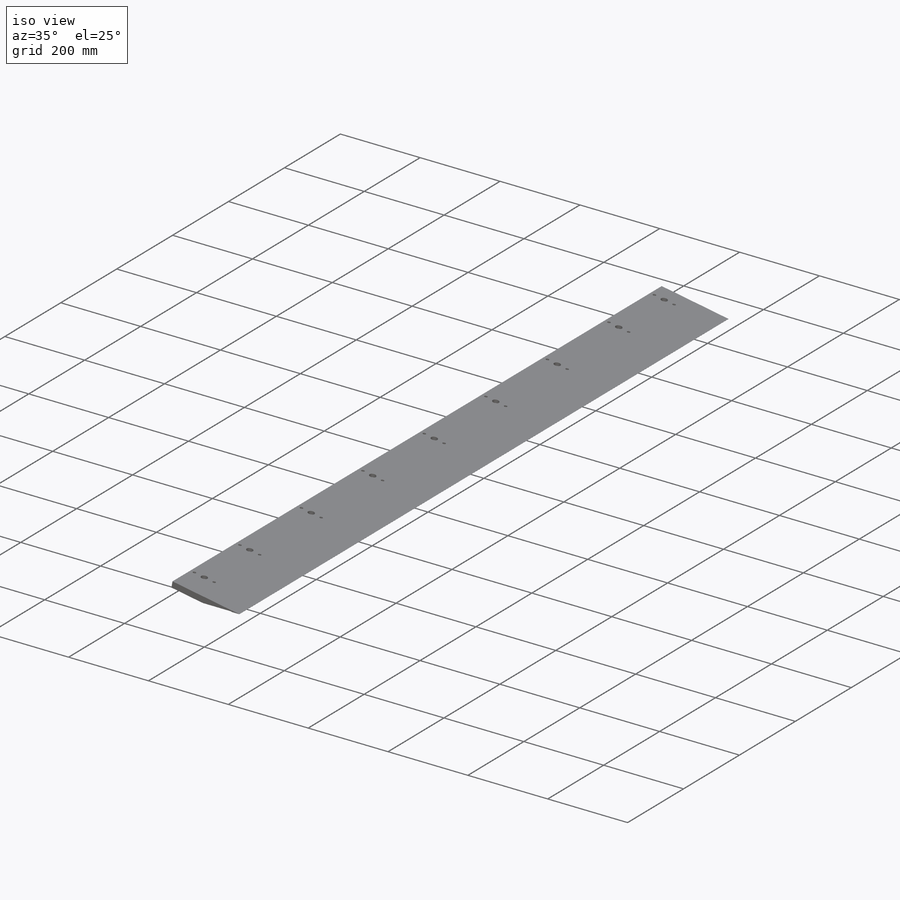
[diagram: iso view]
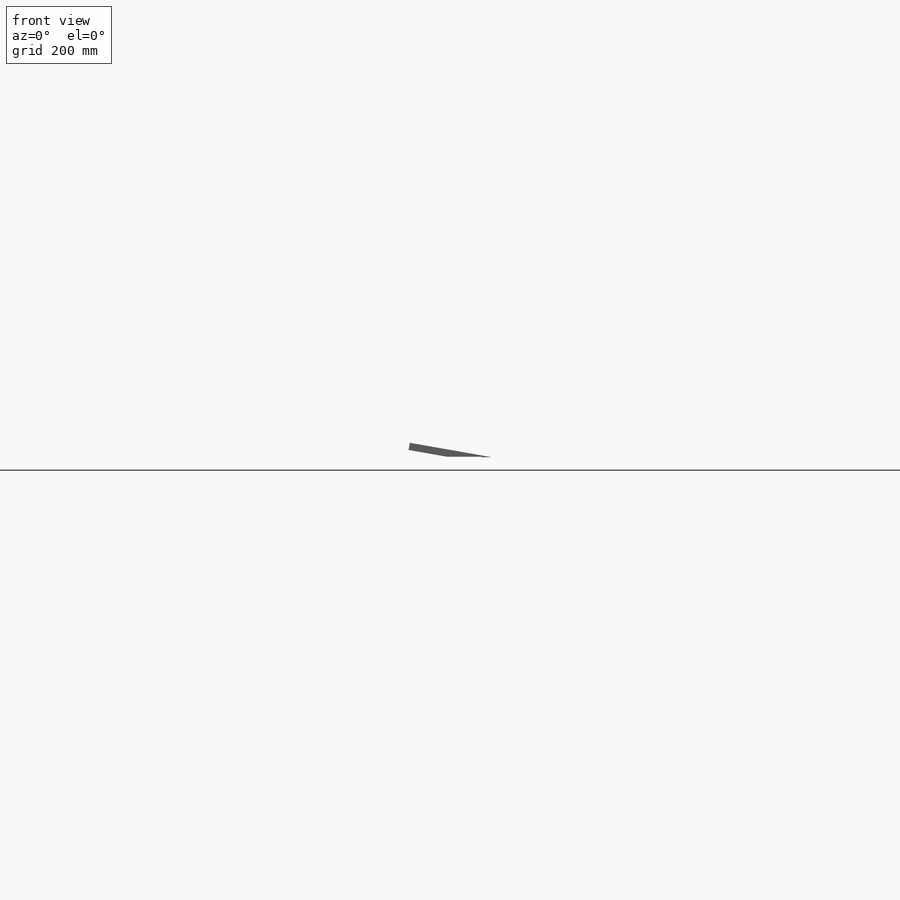
[diagram: front view]
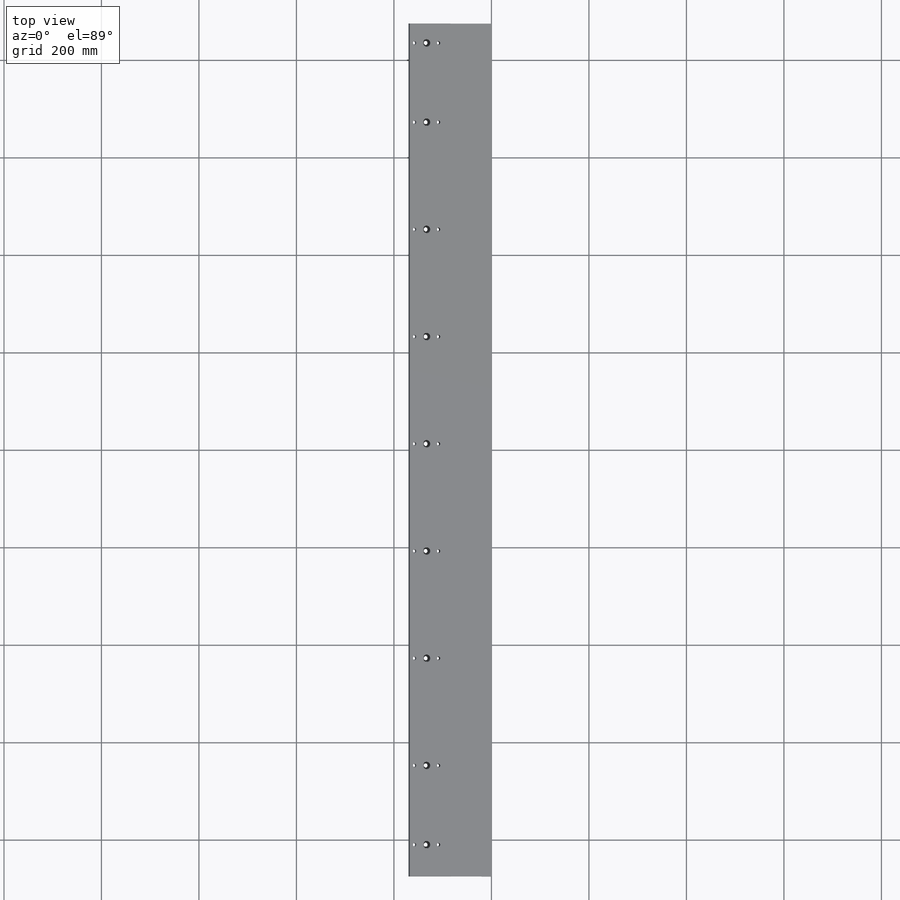
[diagram: top view]
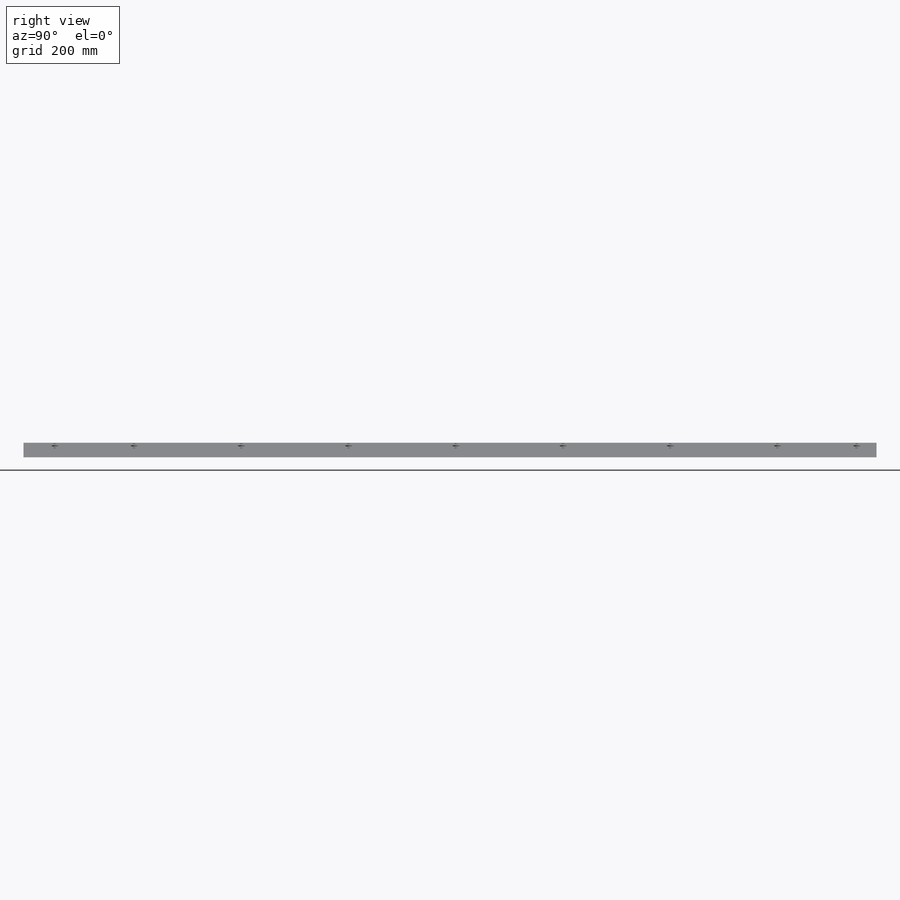
[diagram: right view]
SOLIDWORKS PART (.sldprt)
format: sldprt  version: not decoded by parser v0  size: 451,072 bytes
history: native  units: mm
features: thread x18, sketch x6, plane x3, hole x2, material x1, extrude x1, chamfer x1, fillet x1 (+10 scaffold rows collapsed)
feature tree (43):
  scaffold x10  (default folders/planes/origin — collapsed)
  material  "Matériau <non spécifié>"
  plane  "Plan de face"
  plane  "Plan de dessus"
  plane  "Plan de droite"
  sketch  "Esquisse1"  dims[c1.D1=20.0mm c1.D2=0.5mm c1.D3=1.0mm c1.D4=15.0mm c1.D5=80.0mm c1.D6=60.0mm c1.D7=~158.767062mm c2.D6=170.0mm c2.D7=20.0mm c3.D7=~11.661079deg c4.D7=~61.58278mm c5.D7=~11.661079deg c6.D7=~61.392567mm c7.D7=~10.971623deg c8.D7=~61.392567mm c9.D7=~169.028377deg c10.D7=~61.392567mm c10.D2=~15.225823mm c11.D2=170.0deg c11.D3=1.0mm]
  extrude  "Boss.-Extru.1"  Depth=1750mm
  sketch  "Esquisse3"  dims[c1.D1=5.0mm c1.D2=5.0mm c1.D7=16.0mm c1.D3=50.0mm c1.D4=10.0mm c1.D5=65.0mm c1.D6=25.0mm c2.D2=162.5mm c2.D9=50.0mm c2.D10=220.0mm c2.D11=220.0mm c2.D12=220.0mm c2.D14=162.5mm c2.D15=50.0mm c2.D8=2.0 c3.D9=4.0 c3.D11=4.0 c3.D13=2.0]
  hole  "Chambrage pour vis à tête hexagonale M81"  Diameter=9mm Depth=42mm
  sketch  "Esquisse3D1"
  sketch  "Esquisse4"  dims[hole-wizard template sketch: 28 standard entries collapsed; hole parameters kept: c8.Diamètre du perçage=9.0mm c8.Profondeur du perçage=42.0mm c8.Diamètre du chambrage=15.0mm c8.Profondeur du chambrage=8.6mm c8.D5=~14.816244mm c8.Angle de pointe=118.0deg]
  hole  "Trou taraudé M81"  [1 undecoded]
  sketch  "Esquisse3D3"
  thread  "Filetage de perçage1"  Diameter=8mm  [1 undecoded]
  thread  "Filetage de perçage2"  Diameter=8mm  [1 undecoded]
  sketch  "Esquisse6"  dims[hole-wizard template sketch: 59 standard entries collapsed; hole parameters kept: c18.Diamètre du trou pour taraudage jusqu'au prochain=6.8mm c18.Profondeur du trou pour taraudage jusqu'au prochain=~29.665613mm]
  thread  "Filetage de perçage3"  Diameter=8mm  [1 undecoded]
  thread  "Filetage de perçage4"  Diameter=8mm  [1 undecoded]
  thread  "Filetage de perçage5"  Diameter=8mm  [1 undecoded]
  thread  "Filetage de perçage6"  Diameter=8mm  [1 undecoded]
  thread  "Filetage de perçage7"  Diameter=8mm  [1 undecoded]
  thread  "Filetage de perçage8"  Diameter=8mm  [1 undecoded]
  thread  "Filetage de perçage9"  Diameter=8mm  [1 undecoded]
  thread  "Filetage de perçage10"  Diameter=8mm  [1 undecoded]
  thread  "Filetage de perçage11"  Diameter=8mm  [1 undecoded]
  thread  "Filetage de perçage12"  Diameter=8mm  [1 undecoded]
  thread  "Filetage de perçage13"  Diameter=8mm  [1 undecoded]
  thread  "Filetage de perçage14"  Diameter=8mm  [1 undecoded]
  thread  "Filetage de perçage15"  Diameter=8mm  [1 undecoded]
  thread  "Filetage de perçage16"  Diameter=8mm  [1 undecoded]
  thread  "Filetage de perçage17"  Diameter=8mm  [1 undecoded]
  thread  "Filetage de perçage18"  Diameter=8mm  [1 undecoded]
  chamfer  "Chanfrein3"  Distance=0.5mm Angle=45deg
  fillet  "Congé1"  Radius=0.1mm
decode coverage: 26 of 29 modeling features carry decoded parameters
note: ~ marks probable driven/reference dimensions
note: 19 parameter values undecoded
note: suppression state not decoded; provenance and decode notes live in map.json
